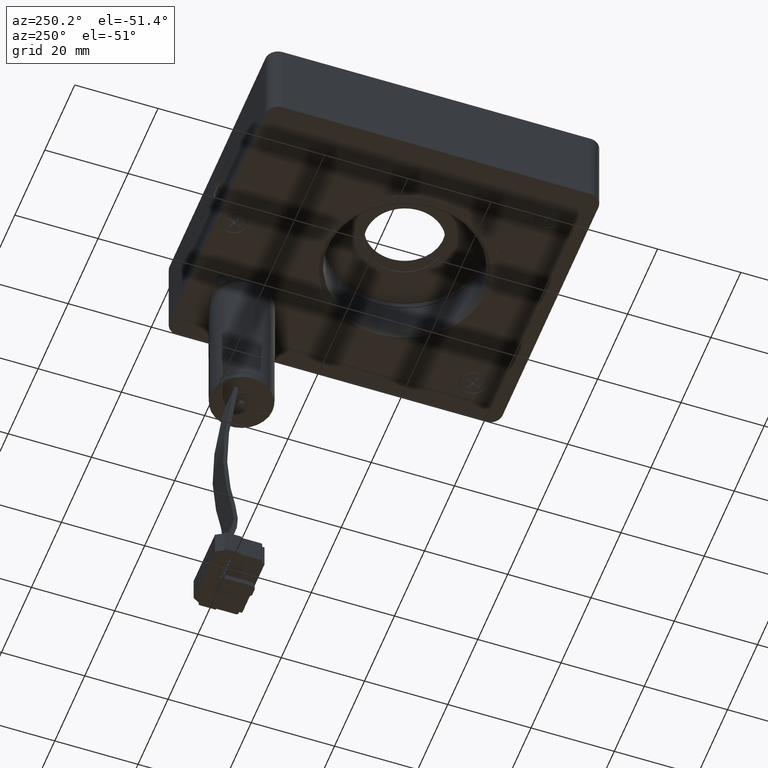
[diagram: clean part render]
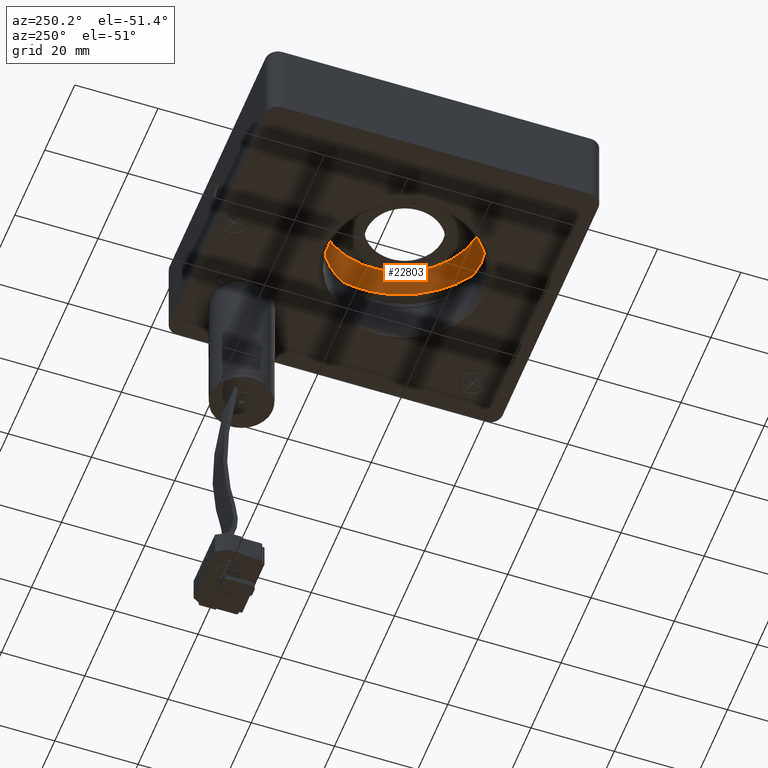
[diagram: same view with one face highlighted and labeled with its STEP entity id]
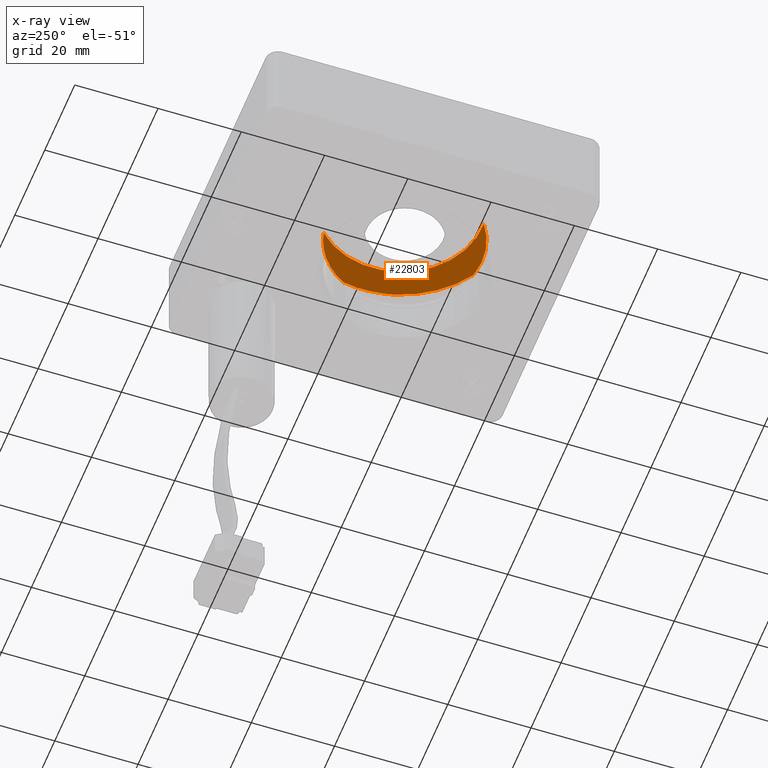
[diagram: x-ray of the same camera — body ghosted, the highlighted face saturated]
A machine part, auxiliary view. The second image highlights one B-rep face of the part: STEP entity #22803.
The next image is the same camera in x-ray: the body ghosted, the highlighted face saturated — about 0% of this face is hidden behind the body in this view.
In plain terms, the highlighted planar face has unit normal (0, 0, -1).
Its self-contained STEP definition (entity closure, byte-faithful):
#257 = DIRECTION ( 'NONE',  ( 0.5864284052779972200, 0.8100010651123273900, 0.0000000000000000000 ) ) ;
#651 = CIRCLE ( 'NONE', #33309, 19.40000000000011200 ) ;
#773 = CARTESIAN_POINT ( 'NONE',  ( -22.30959205854914600, 6.325128544785485500, 7.880000000026372600 ) ) ;
#1739 = EDGE_CURVE ( 'NONE', #43119, #26007, #9647, .T. ) ;
#2206 = EDGE_CURVE ( 'NONE', #11440, #26007, #24265, .T. ) ;
#2270 = VERTEX_POINT ( 'NONE', #19043 ) ;
#2806 = CARTESIAN_POINT ( 'NONE',  ( -12.91903274966293200, 2.163028059219104500, 7.880000000026372600 ) ) ;
#3137 = DIRECTION ( 'NONE',  ( 0.5864284052779972200, 0.8100010651123273900, 0.0000000000000000000 ) ) ;
#3672 = DIRECTION ( 'NONE',  ( 0.5864284052779972200, 0.8100010651123275000, 0.0000000000000000000 ) ) ;
#4619 = DIRECTION ( 'NONE',  ( 0.5864284052779986700, 0.8100010651123265000, 0.0000000000000000000 ) ) ;
#6638 = PLANE ( 'NONE',  #33331 ) ;
#6688 = EDGE_CURVE ( 'NONE', #13608, #43119, #32085, .T. ) ;
#6824 = VERTEX_POINT ( 'NONE', #27846 ) ;
#6987 = CARTESIAN_POINT ( 'NONE',  ( -12.91903274966293200, 2.163028059219104500, 7.880000000026372600 ) ) ;
#7506 = AXIS2_PLACEMENT_3D ( 'NONE', #22969, #38352, #3672 ) ;
#8195 = CARTESIAN_POINT ( 'NONE',  ( -3.921028882405614100, 0.1428357405758059800, 7.880000000026372600 ) ) ;
#8225 = CARTESIAN_POINT ( 'NONE',  ( -22.30959205854914600, 6.325128544785485500, 7.880000000026372600 ) ) ;
#8574 = VERTEX_POINT ( 'NONE', #22356 ) ;
#8632 = DIRECTION ( 'NONE',  ( 0.5864284052779972200, 0.8100010651123273900, 0.0000000000000000000 ) ) ;
#9647 = CIRCLE ( 'NONE', #11749, 19.40000000000010900 ) ;
#9889 = CIRCLE ( 'NONE', #11626, 18.50000000000013100 ) ;
#10607 = FACE_OUTER_BOUND ( 'NONE', #29584, .T. ) ;
#10648 = AXIS2_PLACEMENT_3D ( 'NONE', #2806, #30430, #3137 ) ;
#11322 = AXIS2_PLACEMENT_3D ( 'NONE', #30975, #15433, #257 ) ;
#11440 = VERTEX_POINT ( 'NONE', #8195 ) ;
#11626 = AXIS2_PLACEMENT_3D ( 'NONE', #29490, #40580, #21115 ) ;
#11749 = AXIS2_PLACEMENT_3D ( 'NONE', #8225, #47617, #4619 ) ;
#11844 = AXIS2_PLACEMENT_3D ( 'NONE', #45500, #45162, #18019 ) ;
#12713 = VERTEX_POINT ( 'NONE', #37662 ) ;
#13411 = ORIENTED_EDGE ( 'NONE', *, *, #18063, .T. ) ;
#13608 = VERTEX_POINT ( 'NONE', #47600 ) ;
#13612 = CIRCLE ( 'NONE', #25451, 26.00000000000014600 ) ;
#14264 = ORIENTED_EDGE ( 'NONE', *, *, #6688, .T. ) ;
#15433 = DIRECTION ( 'NONE',  ( 0.0000000000000000000, 0.0000000000000000000, -1.000000000000000000 ) ) ;
#15957 = ORIENTED_EDGE ( 'NONE', *, *, #29111, .T. ) ;
#15992 = ORIENTED_EDGE ( 'NONE', *, *, #34124, .F. ) ;
#18019 = DIRECTION ( 'NONE',  ( 0.5864284052779986700, 0.8100010651123265000, 0.0000000000000000000 ) ) ;
#18063 = EDGE_CURVE ( 'NONE', #8574, #2270, #9889, .T. ) ;
#18911 = DIRECTION ( 'NONE',  ( 0.0000000000000000000, 0.0000000000000000000, -1.000000000000000000 ) ) ;
#19043 = CARTESIAN_POINT ( 'NONE',  ( -2.070107252019970800, 17.14804776379717700, 7.880000000026372600 ) ) ;
#19729 = CARTESIAN_POINT ( 'NONE',  ( -22.30959205854914600, 6.325128544785485500, 7.880000000026372600 ) ) ;
#20691 = DIRECTION ( 'NONE',  ( 0.5864284052779821200, 0.8100010651123384900, 0.0000000000000000000 ) ) ;
#21115 = DIRECTION ( 'NONE',  ( 0.5864284052779972200, 0.8100010651123273900, 0.0000000000000000000 ) ) ;
#22356 = CARTESIAN_POINT ( 'NONE',  ( -8.733502363930247400, 20.18333148036366300, 7.880000000026372600 ) ) ;
#22803 = ADVANCED_FACE ( 'NONE', ( #10607 ), #6638, .T. ) ;
#22833 = DIRECTION ( 'NONE',  ( 0.5864284052779971100, 0.8100010651123275000, 0.0000000000000000000 ) ) ;
#22969 = CARTESIAN_POINT ( 'NONE',  ( -12.91903274966293200, 2.163028059219104500, 7.880000000026372600 ) ) ;
#23372 = ORIENTED_EDGE ( 'NONE', *, *, #2206, .F. ) ;
#24265 = CIRCLE ( 'NONE', #7506, 9.221998189084780900 ) ;
#24625 = EDGE_CURVE ( 'NONE', #26900, #6824, #46348, .T. ) ;
#24935 = CIRCLE ( 'NONE', #11844, 26.00000000000014600 ) ;
#25451 = AXIS2_PLACEMENT_3D ( 'NONE', #19729, #46853, #8632 ) ;
#26007 = VERTEX_POINT ( 'NONE', #42676 ) ;
#26900 = VERTEX_POINT ( 'NONE', #33697 ) ;
#27846 = CARTESIAN_POINT ( 'NONE',  ( 3.287532018940844600, 1.765826080417758300, 7.880000000026372600 ) ) ;
#29111 = EDGE_CURVE ( 'NONE', #2270, #12713, #30613, .T. ) ;
#29447 = ORIENTED_EDGE ( 'NONE', *, *, #1739, .T. ) ;
#29490 = CARTESIAN_POINT ( 'NONE',  ( -12.91903274966293200, 2.163028059219104500, 7.880000000026372600 ) ) ;
#29584 = EDGE_LOOP ( 'NONE', ( #14264, #29447, #23372, #36395, #13411, #15957, #15992, #42914, #33600 ) ) ;
#30430 = DIRECTION ( 'NONE',  ( 0.0000000000000000000, 0.0000000000000000000, -1.000000000000000000 ) ) ;
#30613 = CIRCLE ( 'NONE', #10648, 18.50000000000013100 ) ;
#30975 = CARTESIAN_POINT ( 'NONE',  ( -12.91903274966293200, 2.163028059219104500, 7.880000000026372600 ) ) ;
#31230 = DIRECTION ( 'NONE',  ( 0.5864284052779956700, 0.8100010651123285000, 0.0000000000000000000 ) ) ;
#31439 = EDGE_CURVE ( 'NONE', #13608, #26900, #13612, .T. ) ;
#32085 = CIRCLE ( 'NONE', #11322, 18.50000000000013100 ) ;
#33309 = AXIS2_PLACEMENT_3D ( 'NONE', #46735, #34828, #31230 ) ;
#33331 = AXIS2_PLACEMENT_3D ( 'NONE', #6987, #18911, #22833 ) ;
#33405 = AXIS2_PLACEMENT_3D ( 'NONE', #773, #43921, #20691 ) ;
#33600 = ORIENTED_EDGE ( 'NONE', *, *, #31439, .F. ) ;
#33697 = CARTESIAN_POINT ( 'NONE',  ( 2.544454889703191100, -1.308766286431188900, 7.880000000026372600 ) ) ;
#34124 = EDGE_CURVE ( 'NONE', #6824, #12713, #24935, .T. ) ;
#34828 = DIRECTION ( 'NONE',  ( -0.0000000000000000000, -0.0000000000000000000, 1.000000000000000000 ) ) ;
#36395 = ORIENTED_EDGE ( 'NONE', *, *, #47925, .T. ) ;
#37100 = CARTESIAN_POINT ( 'NONE',  ( -23.45915353621754600, -13.04078244357406100, 7.880000000026372600 ) ) ;
#37662 = CARTESIAN_POINT ( 'NONE',  ( 3.232288384298093400, 11.18438192810535400, 7.880000000026372600 ) ) ;
#38352 = DIRECTION ( 'NONE',  ( 0.0000000000000000000, 0.0000000000000000000, -1.000000000000000000 ) ) ;
#40580 = DIRECTION ( 'NONE',  ( 0.0000000000000000000, 0.0000000000000000000, -1.000000000000000000 ) ) ;
#42676 = CARTESIAN_POINT ( 'NONE',  ( -5.379055273782660700, -3.146773280068553700, 7.880000000026372600 ) ) ;
#42914 = ORIENTED_EDGE ( 'NONE', *, *, #24625, .F. ) ;
#43119 = VERTEX_POINT ( 'NONE', #37100 ) ;
#43921 = DIRECTION ( 'NONE',  ( -0.0000000000000000000, -0.0000000000000000000, 1.000000000000000000 ) ) ;
#45162 = DIRECTION ( 'NONE',  ( -0.0000000000000000000, -0.0000000000000000000, 1.000000000000000000 ) ) ;
#45500 = CARTESIAN_POINT ( 'NONE',  ( -22.30959205854914600, 6.325128544785485500, 7.880000000026372600 ) ) ;
#46348 = CIRCLE ( 'NONE', #33405, 26.00000000000014600 ) ;
#46735 = CARTESIAN_POINT ( 'NONE',  ( -22.30959205854914600, 6.325128544785485500, 7.880000000026372600 ) ) ;
#46853 = DIRECTION ( 'NONE',  ( -0.0000000000000000000, -0.0000000000000000000, 1.000000000000000000 ) ) ;
#47600 = CARTESIAN_POINT ( 'NONE',  ( -8.755412662856814500, -15.86235037710641300, 7.880000000026372600 ) ) ;
#47617 = DIRECTION ( 'NONE',  ( -0.0000000000000000000, -0.0000000000000000000, 1.000000000000000000 ) ) ;
#47925 = EDGE_CURVE ( 'NONE', #11440, #8574, #651, .T. ) ;